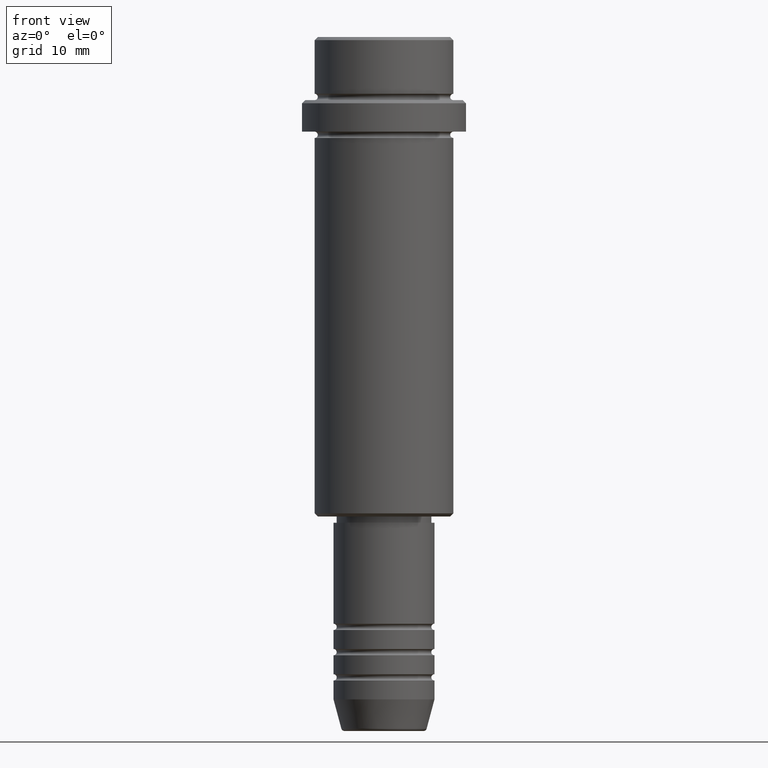
[diagram: clean part render]
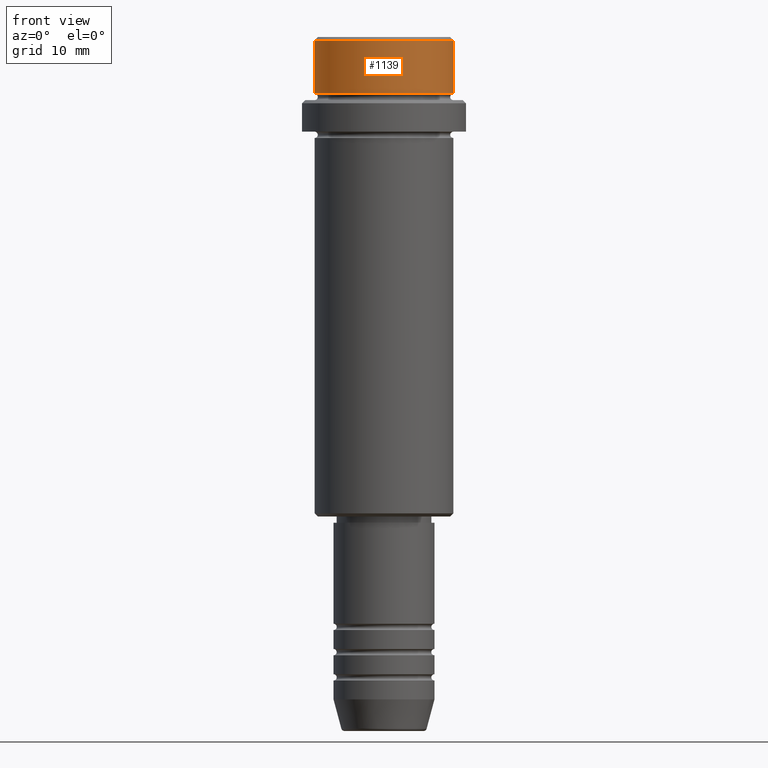
[diagram: same view with one face highlighted and labeled with its STEP entity id]
A machine part, front view. The second image highlights one B-rep face of the part: STEP entity #1139.
In plain terms, the highlighted cylindrical surface (partial cylindrical patch) has radius 11 mm, axis along (-0, -0, 1).
Its self-contained STEP definition (entity closure, byte-faithful):
#14 = VERTEX_POINT ( 'NONE', #1202 ) ;
#93 = ORIENTED_EDGE ( 'NONE', *, *, #281, .F. ) ;
#128 = DIRECTION ( 'NONE',  ( -0.000000000000000000, -0.000000000000000000, 1.000000000000000000 ) ) ;
#129 = EDGE_LOOP ( 'NONE', ( #93, #398, #1336, #1101 ) ) ;
#145 = CIRCLE ( 'NONE', #1385, 10.99999999999998757 ) ;
#266 = CARTESIAN_POINT ( 'NONE',  ( 0.000000000000000000, 0.000000000000000000, -0.4999999999999744094 ) ) ;
#271 = EDGE_CURVE ( 'NONE', #422, #403, #773, .T. ) ;
#281 = EDGE_CURVE ( 'NONE', #422, #14, #419, .T. ) ;
#316 = CARTESIAN_POINT ( 'NONE',  ( -10.99999999999998757, 1.347111479062086827E-15, 0.000000000000000000 ) ) ;
#337 = DIRECTION ( 'NONE',  ( 1.000000000000000000, 0.000000000000000000, 0.000000000000000000 ) ) ;
#398 = ORIENTED_EDGE ( 'NONE', *, *, #271, .T. ) ;
#403 = VERTEX_POINT ( 'NONE', #1270 ) ;
#416 = EDGE_CURVE ( 'NONE', #770, #14, #145, .T. ) ;
#419 = LINE ( 'NONE', #316, #483 ) ;
#422 = VERTEX_POINT ( 'NONE', #1035 ) ;
#483 = VECTOR ( 'NONE', #1401, 1000.000000000000000 ) ;
#522 = CARTESIAN_POINT ( 'NONE',  ( 10.99999999999998757, 0.000000000000000000, 0.000000000000000000 ) ) ;
#523 = DIRECTION ( 'NONE',  ( -0.000000000000000000, -0.000000000000000000, 1.000000000000000000 ) ) ;
#572 = EDGE_CURVE ( 'NONE', #403, #770, #1181, .T. ) ;
#655 = AXIS2_PLACEMENT_3D ( 'NONE', #1309, #128, #337 ) ;
#691 = DIRECTION ( 'NONE',  ( 1.000000000000000000, 0.000000000000000000, 0.000000000000000000 ) ) ;
#725 = CARTESIAN_POINT ( 'NONE',  ( 0.000000000000000000, 0.000000000000000000, -9.000000000000000000 ) ) ;
#770 = VERTEX_POINT ( 'NONE', #930 ) ;
#773 = CIRCLE ( 'NONE', #1170, 10.99999999999997158 ) ;
#812 = DIRECTION ( 'NONE',  ( 0.000000000000000000, 0.000000000000000000, -1.000000000000000000 ) ) ;
#859 = DIRECTION ( 'NONE',  ( -0.000000000000000000, -0.000000000000000000, 1.000000000000000000 ) ) ;
#866 = FACE_OUTER_BOUND ( 'NONE', #129, .T. ) ;
#897 = VECTOR ( 'NONE', #859, 1000.000000000000000 ) ;
#930 = CARTESIAN_POINT ( 'NONE',  ( 10.99999999999998757, 0.000000000000000000, -0.4999999999999744094 ) ) ;
#1020 = CYLINDRICAL_SURFACE ( 'NONE', #655, 10.99999999999998757 ) ;
#1035 = CARTESIAN_POINT ( 'NONE',  ( -10.99999999999997158, 1.347111479062085841E-15, -9.000000000000000000 ) ) ;
#1101 = ORIENTED_EDGE ( 'NONE', *, *, #416, .T. ) ;
#1139 = ADVANCED_FACE ( 'NONE', ( #866 ), #1020, .T. ) ;
#1170 = AXIS2_PLACEMENT_3D ( 'NONE', #725, #523, #1177 ) ;
#1177 = DIRECTION ( 'NONE',  ( 1.000000000000000000, 0.000000000000000000, 0.000000000000000000 ) ) ;
#1181 = LINE ( 'NONE', #522, #897 ) ;
#1202 = CARTESIAN_POINT ( 'NONE',  ( -10.99999999999998757, 1.347111479062086827E-15, -0.4999999999999744094 ) ) ;
#1270 = CARTESIAN_POINT ( 'NONE',  ( 10.99999999999997158, 0.000000000000000000, -9.000000000000000000 ) ) ;
#1309 = CARTESIAN_POINT ( 'NONE',  ( 0.000000000000000000, 0.000000000000000000, 0.000000000000000000 ) ) ;
#1336 = ORIENTED_EDGE ( 'NONE', *, *, #572, .T. ) ;
#1385 = AXIS2_PLACEMENT_3D ( 'NONE', #266, #812, #691 ) ;
#1401 = DIRECTION ( 'NONE',  ( -0.000000000000000000, -0.000000000000000000, 1.000000000000000000 ) ) ;